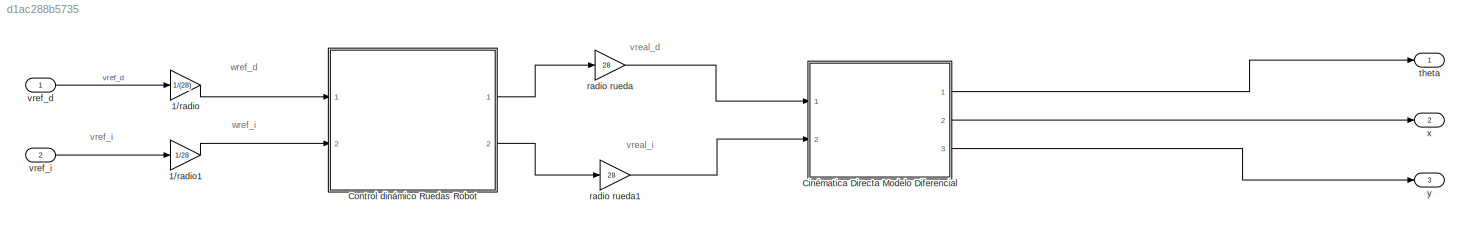
MODEL slx_d1ac288b5735
KIND model
CONFIG AbsTol = auto
CONFIG EnableMultiTasking = off
CONFIG FixedStep = 0.05
CONFIG MaxStep = auto
CONFIG MinStep = auto
CONFIG RelTol = 1e-3
CONFIG SampleTimeConstraint = Unconstrained
CONFIG SolverName = ode4
CONFIG StartTime = 0.0
CONFIG StopTime = 30.0
BLOCK [Gain] 1//radio
  Gain = 1/(28)
BLOCK [Gain] 1//radio1
  Gain = 1/28
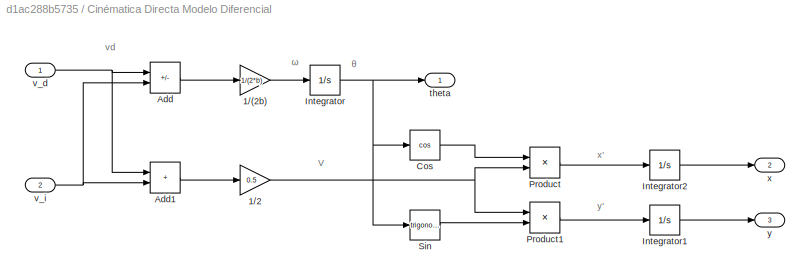
BLOCK [SubSystem] Cinématica Directa Modelo Diferencial
  Ports = [2, 3]
  RequestExecContextInheritance = off
BLOCK [Gain] Cinématica Directa Modelo Diferencial/1//(2b)
  Gain = 1/(2*b)
BLOCK [Gain] Cinématica Directa Modelo Diferencial/1//2
  Gain = 0.5
BLOCK [Sum] Cinématica Directa Modelo Diferencial/Add
  IconShape = rectangular
  Inputs = +-
  Ports = [2, 1]
BLOCK [Sum] Cinématica Directa Modelo Diferencial/Add1
  IconShape = rectangular
  Ports = [2, 1]
BLOCK [Trigonometry] Cinématica Directa Modelo Diferencial/Cos
  Operator = cos
  Ports = [1, 1]
BLOCK [Integrator] Cinématica Directa Modelo Diferencial/Integrator
  Ports = [1, 1]
BLOCK [Integrator] Cinématica Directa Modelo Diferencial/Integrator1
  Ports = [1, 1]
BLOCK [Integrator] Cinématica Directa Modelo Diferencial/Integrator2
  Ports = [1, 1]
BLOCK [Product] Cinématica Directa Modelo Diferencial/Product
  Ports = [2, 1]
BLOCK [Product] Cinématica Directa Modelo Diferencial/Product1
  Ports = [2, 1]
BLOCK [Trigonometry] Cinématica Directa Modelo Diferencial/Sin
  Ports = [1, 1]
BLOCK [Outport] Cinématica Directa Modelo Diferencial/theta
BLOCK [Inport] Cinématica Directa Modelo Diferencial/v_d
BLOCK [Inport] Cinématica Directa Modelo Diferencial/v_i
  Port = 2
BLOCK [Outport] Cinématica Directa Modelo Diferencial/x
  Port = 2
BLOCK [Outport] Cinématica Directa Modelo Diferencial/y
  Port = 3
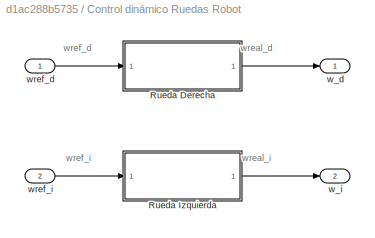
BLOCK [SubSystem] Control dinámico Ruedas Robot
  Ports = [2, 2]
  RequestExecContextInheritance = off
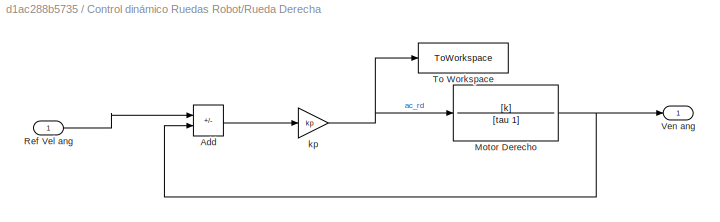
BLOCK [SubSystem] Control dinámico Ruedas Robot/Rueda Derecha
  Ports = [1, 1]
  RequestExecContextInheritance = off
BLOCK [Sum] Control dinámico Ruedas Robot/Rueda Derecha/Add
  IconShape = rectangular
  Inputs = +-
  Ports = [2, 1]
BLOCK [TransferFcn] Control dinámico Ruedas Robot/Rueda Derecha/Motor Derecho
  Denominator = [tau 1]
  Numerator = [k]
BLOCK [Inport] Control dinámico Ruedas Robot/Rueda Derecha/Ref Vel ang
BLOCK [ToWorkspace] Control dinámico Ruedas Robot/Rueda Derecha/To Workspace
  FixptAsFi = on
  MaxDataPoints = inf
  Ports = [1]
  SampleTime = -1
  SaveFormat = Timeseries
  VariableName = ac_rd1
BLOCK [Outport] Control dinámico Ruedas Robot/Rueda Derecha/Ven ang
BLOCK [Gain] Control dinámico Ruedas Robot/Rueda Derecha/kp
  Gain = kp
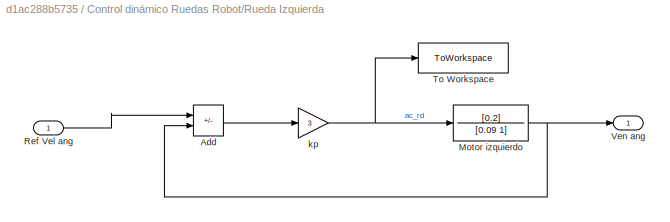
BLOCK [SubSystem] Control dinámico Ruedas Robot/Rueda Izquierda
  Ports = [1, 1]
  RequestExecContextInheritance = off
BLOCK [Sum] Control dinámico Ruedas Robot/Rueda Izquierda/Add
  IconShape = rectangular
  Inputs = +-
  Ports = [2, 1]
BLOCK [TransferFcn] Control dinámico Ruedas Robot/Rueda Izquierda/Motor izquierdo
  Denominator = [0.09 1]
  Numerator = [0.2]
BLOCK [Inport] Control dinámico Ruedas Robot/Rueda Izquierda/Ref Vel ang
BLOCK [ToWorkspace] Control dinámico Ruedas Robot/Rueda Izquierda/To Workspace
  FixptAsFi = on
  MaxDataPoints = inf
  Ports = [1]
  SampleTime = -1
  SaveFormat = Timeseries
  VariableName = ac_rd2
BLOCK [Outport] Control dinámico Ruedas Robot/Rueda Izquierda/Ven ang
BLOCK [Gain] Control dinámico Ruedas Robot/Rueda Izquierda/kp
  Gain = 3
BLOCK [Outport] Control dinámico Ruedas Robot/w_d
BLOCK [Outport] Control dinámico Ruedas Robot/w_i
  Port = 2
BLOCK [Inport] Control dinámico Ruedas Robot/wref_d
BLOCK [Inport] Control dinámico Ruedas Robot/wref_i
  Port = 2
BLOCK [Gain] radio rueda
  Gain = 28
BLOCK [Gain] radio rueda1
  Gain = 28
BLOCK [Outport] theta
BLOCK [Inport] vref_d
BLOCK [Inport] vref_i
  Port = 2
BLOCK [Outport] x
  Port = 2
BLOCK [Outport] y
  Port = 3
ANNOTATION (root): vreal_d
ANNOTATION (root): vreal_i
ANNOTATION (root): vref_i
ANNOTATION (root): wref_d
ANNOTATION (root): wref_i
ANNOTATION Cinématica Directa Modelo Diferencial: ω
ANNOTATION Cinématica Directa Modelo Diferencial: θ
ANNOTATION Cinématica Directa Modelo Diferencial: V
ANNOTATION Cinématica Directa Modelo Diferencial: vd
ANNOTATION Cinématica Directa Modelo Diferencial: x'
ANNOTATION Cinématica Directa Modelo Diferencial: y'
ANNOTATION Control dinámico Ruedas Robot: wreal_d
ANNOTATION Control dinámico Ruedas Robot: wreal_i
ANNOTATION Control dinámico Ruedas Robot: wref_d
ANNOTATION Control dinámico Ruedas Robot: wref_i
LINE 1//radio1:1 -> Control dinámico Ruedas Robot:2
LINE 1//radio:1 -> Control dinámico Ruedas Robot:1
LINE Cinématica Directa Modelo Diferencial/1//(2b):1 -> Cinématica Directa Modelo Diferencial/Integrator:1
NET Cinématica Directa Modelo Diferencial/1//2:1 -> Cinématica Directa Modelo Diferencial/Product1:1, Cinématica Directa Modelo Diferencial/Product:2
LINE Cinématica Directa Modelo Diferencial/Add1:1 -> Cinématica Directa Modelo Diferencial/1//2:1
LINE Cinématica Directa Modelo Diferencial/Add:1 -> Cinématica Directa Modelo Diferencial/1//(2b):1
LINE Cinématica Directa Modelo Diferencial/Cos:1 -> Cinématica Directa Modelo Diferencial/Product:1
LINE Cinématica Directa Modelo Diferencial/Integrator1:1 -> Cinématica Directa Modelo Diferencial/y:1
LINE Cinématica Directa Modelo Diferencial/Integrator2:1 -> Cinématica Directa Modelo Diferencial/x:1
NET Cinématica Directa Modelo Diferencial/Integrator:1 -> Cinématica Directa Modelo Diferencial/Cos:1, Cinématica Directa Modelo Diferencial/Sin:1, Cinématica Directa Modelo Diferencial/theta:1
LINE Cinématica Directa Modelo Diferencial/Product1:1 -> Cinématica Directa Modelo Diferencial/Integrator1:1
LINE Cinématica Directa Modelo Diferencial/Product:1 -> Cinématica Directa Modelo Diferencial/Integrator2:1
LINE Cinématica Directa Modelo Diferencial/Sin:1 -> Cinématica Directa Modelo Diferencial/Product1:2
NET Cinématica Directa Modelo Diferencial/v_d:1 -> Cinématica Directa Modelo Diferencial/Add1:1, Cinématica Directa Modelo Diferencial/Add:1
NET Cinématica Directa Modelo Diferencial/v_i:1 -> Cinématica Directa Modelo Diferencial/Add1:2, Cinématica Directa Modelo Diferencial/Add:2
LINE Cinématica Directa Modelo Diferencial:1 -> theta:1
LINE Cinématica Directa Modelo Diferencial:2 -> x:1
LINE Cinématica Directa Modelo Diferencial:3 -> y:1
LINE Control dinámico Ruedas Robot/Rueda Derecha/Add:1 -> Control dinámico Ruedas Robot/Rueda Derecha/kp:1
NET Control dinámico Ruedas Robot/Rueda Derecha/Motor Derecho:1 -> Control dinámico Ruedas Robot/Rueda Derecha/Add:2, Control dinámico Ruedas Robot/Rueda Derecha/Ven ang:1
LINE Control dinámico Ruedas Robot/Rueda Derecha/Ref Vel ang:1 -> Control dinámico Ruedas Robot/Rueda Derecha/Add:1
NET Control dinámico Ruedas Robot/Rueda Derecha/kp:1 -> Control dinámico Ruedas Robot/Rueda Derecha/Motor Derecho:1, Control dinámico Ruedas Robot/Rueda Derecha/To Workspace:1
LINE Control dinámico Ruedas Robot/Rueda Derecha:1 -> Control dinámico Ruedas Robot/w_d:1
LINE Control dinámico Ruedas Robot/Rueda Izquierda/Add:1 -> Control dinámico Ruedas Robot/Rueda Izquierda/kp:1
NET Control dinámico Ruedas Robot/Rueda Izquierda/Motor izquierdo:1 -> Control dinámico Ruedas Robot/Rueda Izquierda/Add:2, Control dinámico Ruedas Robot/Rueda Izquierda/Ven ang:1
LINE Control dinámico Ruedas Robot/Rueda Izquierda/Ref Vel ang:1 -> Control dinámico Ruedas Robot/Rueda Izquierda/Add:1
NET Control dinámico Ruedas Robot/Rueda Izquierda/kp:1 -> Control dinámico Ruedas Robot/Rueda Izquierda/Motor izquierdo:1, Control dinámico Ruedas Robot/Rueda Izquierda/To Workspace:1
LINE Control dinámico Ruedas Robot/Rueda Izquierda:1 -> Control dinámico Ruedas Robot/w_i:1
LINE Control dinámico Ruedas Robot/wref_d:1 -> Control dinámico Ruedas Robot/Rueda Derecha:1
LINE Control dinámico Ruedas Robot/wref_i:1 -> Control dinámico Ruedas Robot/Rueda Izquierda:1
LINE Control dinámico Ruedas Robot:1 -> radio rueda:1
LINE Control dinámico Ruedas Robot:2 -> radio rueda1:1
LINE radio rueda1:1 -> Cinématica Directa Modelo Diferencial:2
LINE radio rueda:1 -> Cinématica Directa Modelo Diferencial:1
LINE vref_d:1 -> 1//radio:1
LINE vref_i:1 -> 1//radio1:1
note: NET lines group one-source signal fan-out (src -> all destinations, sorted); 1:1 wires keep LINE
